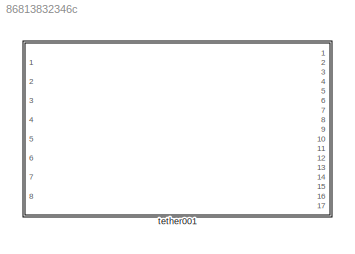
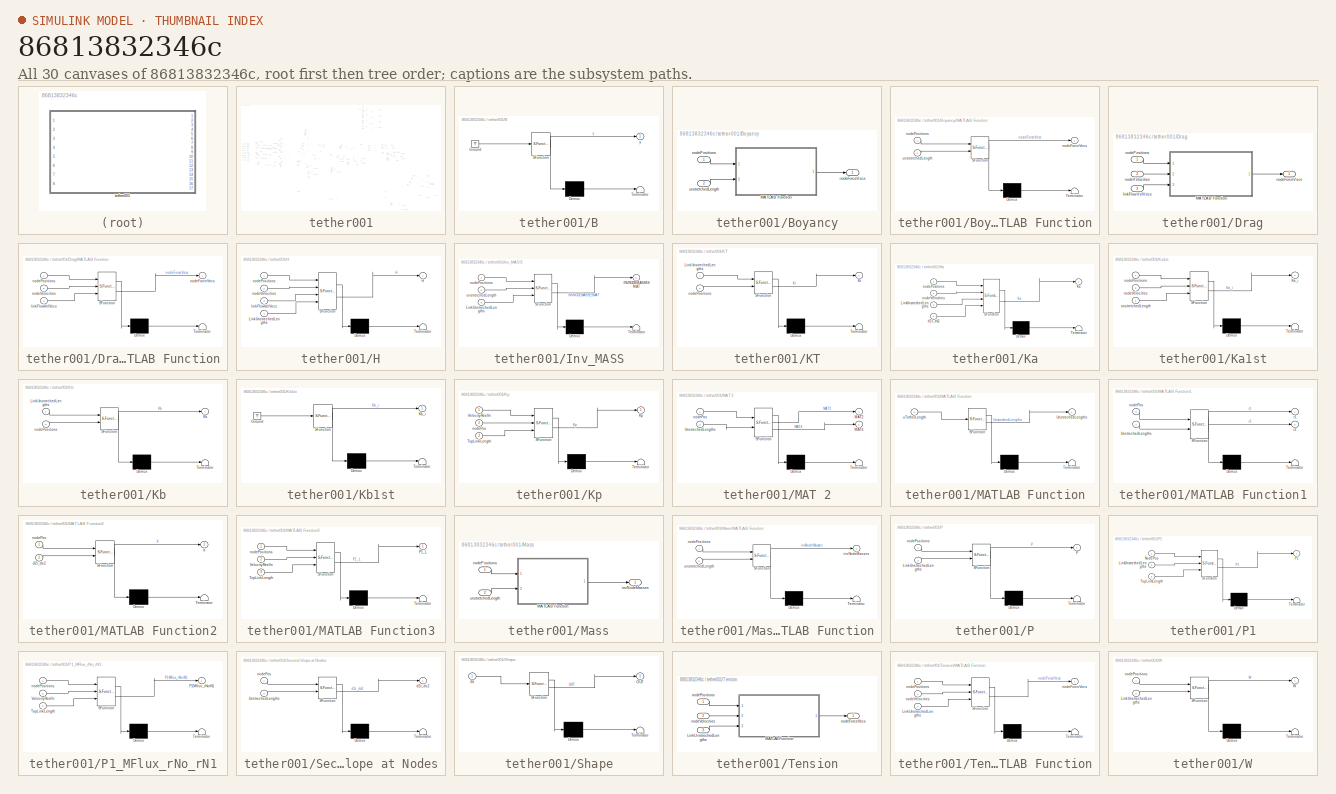
[diagram: thumbnail index - all 30 canvases of the model, root first then tree order]
MODEL slx_86813832346c
KIND library
CONFIG AbsTol = auto
CONFIG EnableMultiTasking = off
CONFIG FixedStep = auto
CONFIG MaxStep = auto
CONFIG MinStep = auto
CONFIG RelTol = 1e-3
CONFIG SampleTimeConstraint = Unconstrained
CONFIG Solver = VariableStepAuto
CONFIG SolverName = VariableStepAuto
CONFIG StartTime = 0.0
CONFIG StopTime = 10.0
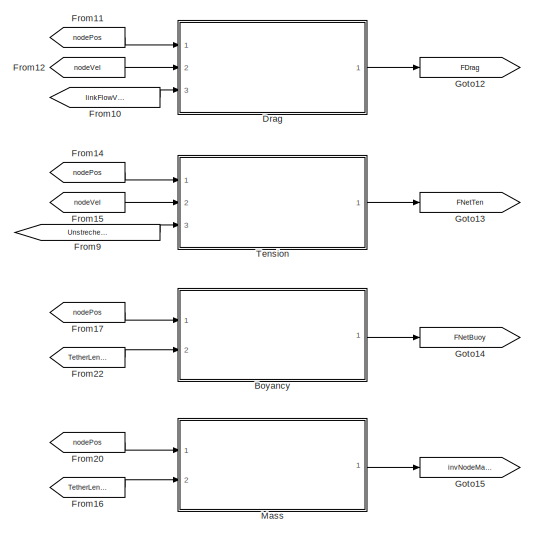
[diagram: tether001 - part 1/8, top center region]
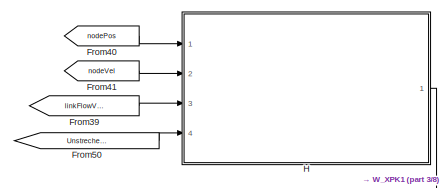
[diagram: tether001 - part 2/8, top center region]
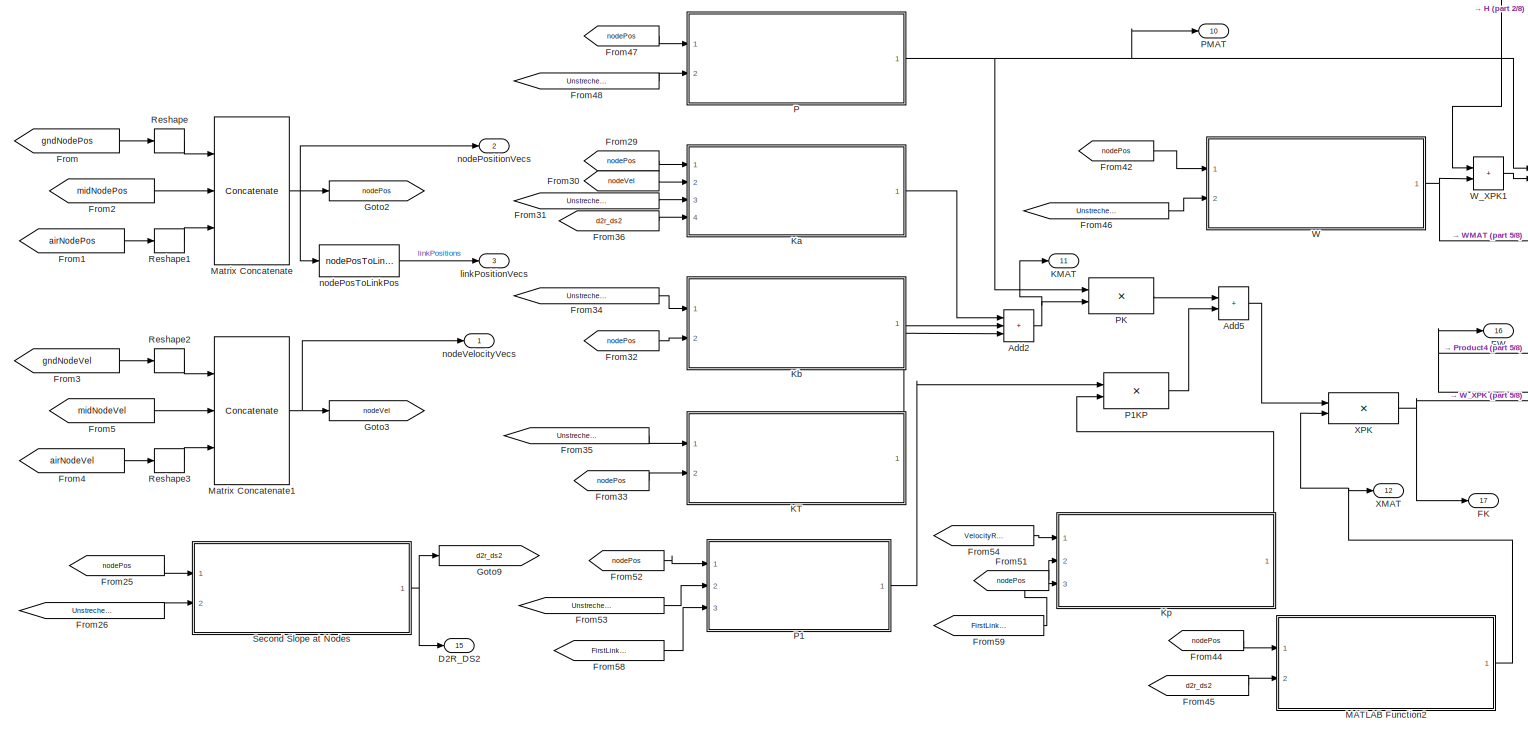
[diagram: tether001 - part 3/8, middle left region]
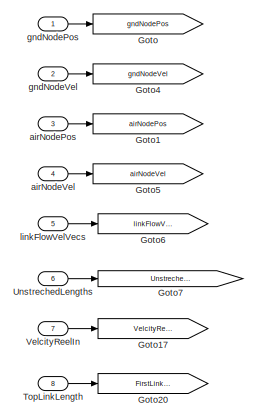
[diagram: tether001 - part 4/8, middle left region]
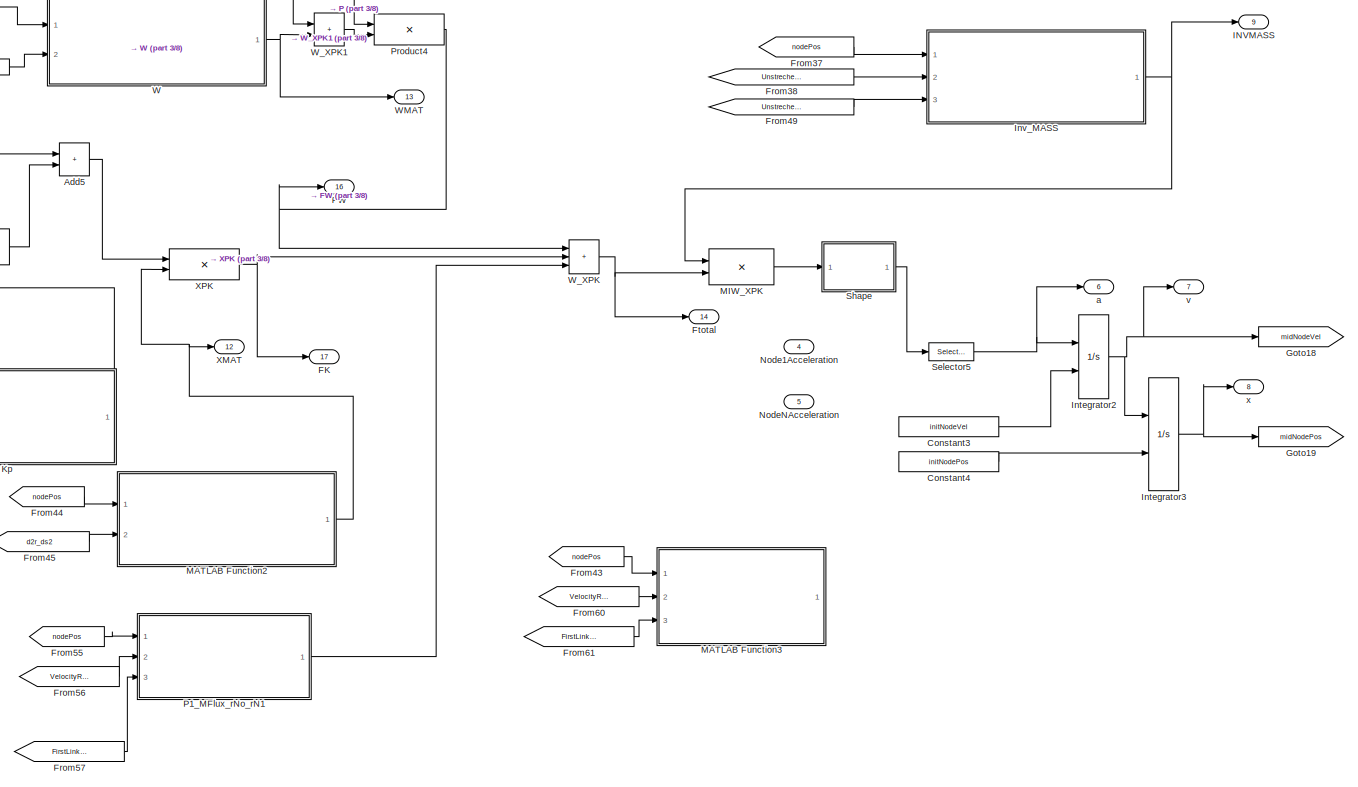
[diagram: tether001 - part 5/8, central region]
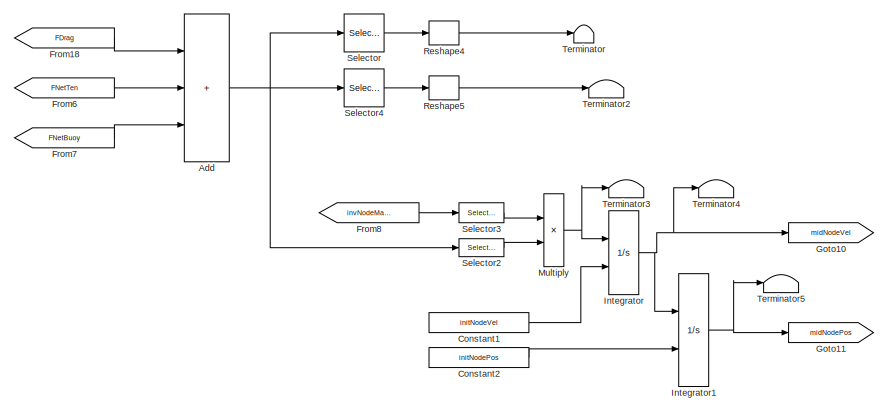
[diagram: tether001 - part 6/8, middle right region]
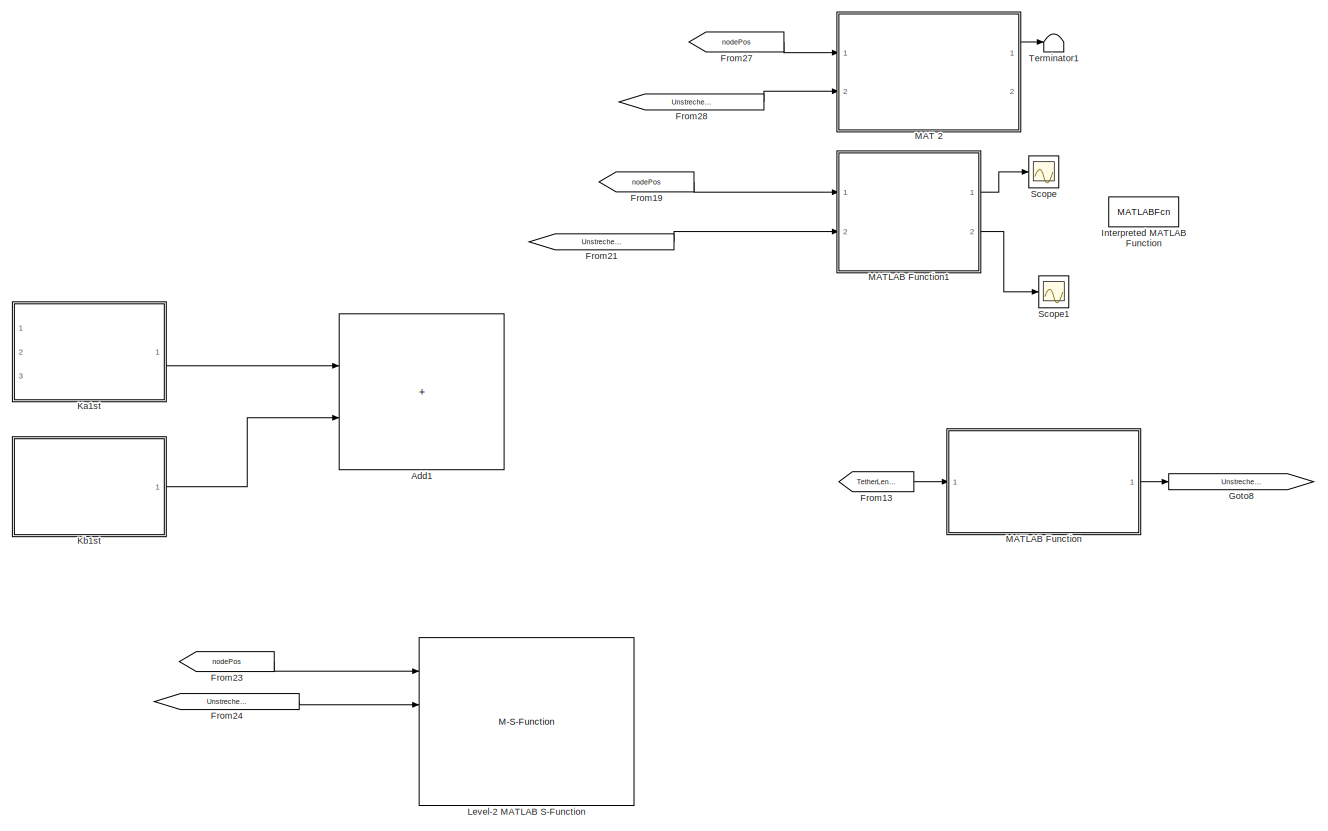
[diagram: tether001 - part 7/8, bottom right region]
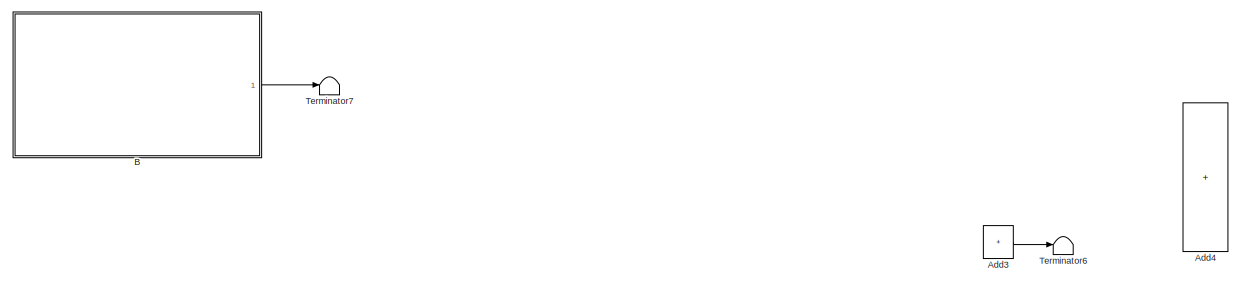
[diagram: tether001 - part 8/8, bottom center region]
BLOCK [SubSystem] tether001
  Ports = [8, 17]
  RequestExecContextInheritance = off
BLOCK [Sum] tether001/Add
  Commented = on
  IconShape = rectangular
  Inputs = 3
  Ports = [3, 1]
BLOCK [Sum] tether001/Add1
  Commented = on
  IconShape = rectangular
  Ports = [2, 1]
BLOCK [Sum] tether001/Add2
  IconShape = rectangular
  Inputs = +++
  Ports = [3, 1]
BLOCK [Sum] tether001/Add3
  Commented = on
  IconShape = rectangular
  Ports = [2, 1]
BLOCK [Sum] tether001/Add4
  Commented = on
  IconShape = rectangular
  Inputs = 2
  Ports = [2, 1]
BLOCK [Sum] tether001/Add5
  IconShape = rectangular
  Ports = [2, 1]
BLOCK [SubSystem] tether001/B
  Commented = on
  ErrorFcn = Stateflow.Translate.translate
  PermitHierarchicalResolution = ExplicitOnly
  Ports = [0, 1]
  RequestExecContextInheritance = off
  SFBlockType = MATLAB Function
  TreatAsAtomicUnit = on
BLOCK [Demux] tether001/B/ Demux 
  Outputs = 1
  Ports = [1, 1]
BLOCK [Ground] tether001/B/ Ground 
BLOCK [S-Function] tether001/B/ SFunction 
  EnableBusSupport = off
  FunctionName = sf_sfun
  PortCounts = [1 2]
  Ports = [1, 2]
  SFcnIsStateOwnerBlock = off
  SFunctionDeploymentMode = off
  Tag = Stateflow S-Function 17
BLOCK [Terminator] tether001/B/ Terminator 
BLOCK [Outport] tether001/B/y
BLOCK [SubSystem] tether001/Boyancy
  Commented = on
  Ports = [2, 1]
  RequestExecContextInheritance = off
BLOCK [SubSystem] tether001/Boyancy/MATLAB Function
  ErrorFcn = Stateflow.Translate.translate
  PermitHierarchicalResolution = ExplicitOnly
  Ports = [2, 1]
  RequestExecContextInheritance = off
  SFBlockType = MATLAB Function
  TreatAsAtomicUnit = on
BLOCK [Demux] tether001/Boyancy/MATLAB Function/ Demux 
  Outputs = 1
  Ports = [1, 1]
BLOCK [S-Function] tether001/Boyancy/MATLAB Function/ SFunction 
  EnableBusSupport = off
  FunctionName = sf_sfun
  PortCounts = [2 2]
  Ports = [2, 2]
  SFcnIsStateOwnerBlock = off
  SFunctionDeploymentMode = off
  Tag = Stateflow S-Function 3
BLOCK [Terminator] tether001/Boyancy/MATLAB Function/ Terminator 
BLOCK [Outport] tether001/Boyancy/MATLAB Function/nodeForceVecs
BLOCK [Inport] tether001/Boyancy/MATLAB Function/nodePositions
BLOCK [Inport] tether001/Boyancy/MATLAB Function/unstretchedLength
  Port = 2
BLOCK [Outport] tether001/Boyancy/nodeForceVecs
  VectorParamsAs1DForOutWhenUnconnected = off
BLOCK [Inport] tether001/Boyancy/nodePositions
BLOCK [Inport] tether001/Boyancy/unstretchedLength
  Port = 2
BLOCK [Constant] tether001/Constant1
  Commented = on
  Value = initNodeVel
BLOCK [Constant] tether001/Constant2
  Commented = on
  Value = initNodePos
BLOCK [Constant] tether001/Constant3
  Value = initNodeVel
BLOCK [Constant] tether001/Constant4
  Value = initNodePos
BLOCK [Outport] tether001/D2R_DS2
  Port = 15
  SampleTime = SampleTime
BLOCK [SubSystem] tether001/Drag
  Commented = on
  Ports = [3, 1]
  RequestExecContextInheritance = off
BLOCK [SubSystem] tether001/Drag/MATLAB Function
  ErrorFcn = Stateflow.Translate.translate
  PermitHierarchicalResolution = ExplicitOnly
  Ports = [3, 1]
  RequestExecContextInheritance = off
  SFBlockType = MATLAB Function
  TreatAsAtomicUnit = on
BLOCK [Demux] tether001/Drag/MATLAB Function/ Demux 
  Outputs = 1
  Ports = [1, 1]
BLOCK [S-Function] tether001/Drag/MATLAB Function/ SFunction 
  EnableBusSupport = off
  FunctionName = sf_sfun
  PortCounts = [3 2]
  Ports = [3, 2]
  SFcnIsStateOwnerBlock = off
  SFunctionDeploymentMode = off
  Tag = Stateflow S-Function 2
BLOCK [Terminator] tether001/Drag/MATLAB Function/ Terminator 
BLOCK [Inport] tether001/Drag/MATLAB Function/linkFlowVelVecs
  Port = 3
BLOCK [Outport] tether001/Drag/MATLAB Function/nodeForceVecs
BLOCK [Inport] tether001/Drag/MATLAB Function/nodePositions
BLOCK [Inport] tether001/Drag/MATLAB Function/nodeVelocities
  Port = 2
BLOCK [Inport] tether001/Drag/linkFlowVelVecs
  Port = 3
BLOCK [Outport] tether001/Drag/nodeForceVecs
BLOCK [Inport] tether001/Drag/nodePositions
BLOCK [Inport] tether001/Drag/nodeVelocities
  Port = 2
BLOCK [Outport] tether001/FK
  Port = 17
  SampleTime = SampleTime
BLOCK [Outport] tether001/FW
  Port = 16
  SampleTime = SampleTime
BLOCK [From] tether001/From
  GotoTag = gndNodePos
BLOCK [From] tether001/From1
  GotoTag = airNodePos
BLOCK [From] tether001/From10
  Commented = on
  GotoTag = linkFlowVelVecs
BLOCK [From] tether001/From11
  Commented = on
  GotoTag = nodePos
BLOCK [From] tether001/From12
  Commented = on
  GotoTag = nodeVel
BLOCK [From] tether001/From13
  Commented = on
  GotoTag = TetherLength
BLOCK [From] tether001/From14
  Commented = on
  GotoTag = nodePos
BLOCK [From] tether001/From15
  Commented = on
  GotoTag = nodeVel
BLOCK [From] tether001/From16
  Commented = on
  GotoTag = TetherLength
BLOCK [From] tether001/From17
  Commented = on
  GotoTag = nodePos
BLOCK [From] tether001/From18
  Commented = on
  GotoTag = FDrag
BLOCK [From] tether001/From19
  Commented = on
  GotoTag = nodePos
BLOCK [From] tether001/From2
  GotoTag = midNodePos
BLOCK [From] tether001/From20
  Commented = on
  GotoTag = nodePos
BLOCK [From] tether001/From21
  Commented = on
  GotoTag = UnstrechedLengths
BLOCK [From] tether001/From22
  Commented = on
  GotoTag = TetherLength
BLOCK [From] tether001/From23
  Commented = on
  GotoTag = nodePos
BLOCK [From] tether001/From24
  Commented = on
  GotoTag = UnstrechedLengths
BLOCK [From] tether001/From25
  GotoTag = nodePos
BLOCK [From] tether001/From26
  GotoTag = UnstrechedLengths
BLOCK [From] tether001/From27
  Commented = on
  GotoTag = nodePos
BLOCK [From] tether001/From28
  Commented = on
  GotoTag = UnstrechedLengths
BLOCK [From] tether001/From29
  GotoTag = nodePos
BLOCK [From] tether001/From3
  GotoTag = gndNodeVel
BLOCK [From] tether001/From30
  GotoTag = nodeVel
BLOCK [From] tether001/From31
  GotoTag = UnstrechedLengths
BLOCK [From] tether001/From32
  GotoTag = nodePos
BLOCK [From] tether001/From33
  GotoTag = nodePos
BLOCK [From] tether001/From34
  GotoTag = UnstrechedLengths
BLOCK [From] tether001/From35
  GotoTag = UnstrechedLengths
BLOCK [From] tether001/From36
  GotoTag = d2r_ds2
BLOCK [From] tether001/From37
  GotoTag = nodePos
BLOCK [From] tether001/From38
  GotoTag = UnstrechedLengths
BLOCK [From] tether001/From39
  GotoTag = linkFlowVelVecs
BLOCK [From] tether001/From4
  GotoTag = airNodeVel
BLOCK [From] tether001/From40
  GotoTag = nodePos
BLOCK [From] tether001/From41
  GotoTag = nodeVel
BLOCK [From] tether001/From42
  GotoTag = nodePos
BLOCK [From] tether001/From43
  Commented = on
  GotoTag = nodePos
BLOCK [From] tether001/From44
  GotoTag = nodePos
BLOCK [From] tether001/From45
  GotoTag = d2r_ds2
BLOCK [From] tether001/From46
  GotoTag = UnstrechedLengths
BLOCK [From] tether001/From47
  GotoTag = nodePos
BLOCK [From] tether001/From48
  GotoTag = UnstrechedLengths
BLOCK [From] tether001/From49
  GotoTag = UnstrechedLengths
BLOCK [From] tether001/From5
  GotoTag = midNodeVel
BLOCK [From] tether001/From50
  GotoTag = UnstrechedLengths
BLOCK [From] tether001/From51
  GotoTag = nodePos
BLOCK [From] tether001/From52
  GotoTag = nodePos
BLOCK [From] tether001/From53
  GotoTag = UnstrechedLengths
BLOCK [From] tether001/From54
  GotoTag = VelocityReelIn
BLOCK [From] tether001/From55
  GotoTag = nodePos
BLOCK [From] tether001/From56
  GotoTag = VelocityReelIn
BLOCK [From] tether001/From57
  GotoTag = FirstLinkLength
BLOCK [From] tether001/From58
  GotoTag = FirstLinkLength
BLOCK [From] tether001/From59
  GotoTag = FirstLinkLength
BLOCK [From] tether001/From6
  Commented = on
  GotoTag = FNetTen
BLOCK [From] tether001/From60
  Commented = on
  GotoTag = VelocityReelIn
BLOCK [From] tether001/From61
  Commented = on
  GotoTag = FirstLinkLength
BLOCK [From] tether001/From7
  Commented = on
  GotoTag = FNetBuoy
BLOCK [From] tether001/From8
  Commented = on
  GotoTag = invNodeMasses
BLOCK [From] tether001/From9
  Commented = on
  GotoTag = UnstrechedLengths
BLOCK [Outport] tether001/Ftotal
  Port = 14
  SampleTime = SampleTime
BLOCK [Goto] tether001/Goto
  GotoTag = gndNodePos
BLOCK [Goto] tether001/Goto1
  GotoTag = airNodePos
BLOCK [Goto] tether001/Goto10
  Commented = on
  GotoTag = midNodeVel
BLOCK [Goto] tether001/Goto11
  Commented = on
  GotoTag = midNodePos
BLOCK [Goto] tether001/Goto12
  Commented = on
  GotoTag = FDrag
BLOCK [Goto] tether001/Goto13
  Commented = on
  GotoTag = FNetTen
BLOCK [Goto] tether001/Goto14
  Commented = on
  GotoTag = FNetBuoy
BLOCK [Goto] tether001/Goto15
  Commented = on
  GotoTag = invNodeMasses
BLOCK [Goto] tether001/Goto17
  GotoTag = VelcityReelIn
BLOCK [Goto] tether001/Goto18
  GotoTag = midNodeVel
BLOCK [Goto] tether001/Goto19
  GotoTag = midNodePos
BLOCK [Goto] tether001/Goto2
  GotoTag = nodePos
BLOCK [Goto] tether001/Goto20
  GotoTag = FirstLinkLength
BLOCK [Goto] tether001/Goto3
  GotoTag = nodeVel
BLOCK [Goto] tether001/Goto4
  GotoTag = gndNodeVel
BLOCK [Goto] tether001/Goto5
  GotoTag = airNodeVel
BLOCK [Goto] tether001/Goto6
  GotoTag = linkFlowVelVecs
BLOCK [Goto] tether001/Goto7
  GotoTag = UnstrechedLengths
BLOCK [Goto] tether001/Goto8
  Commented = on
  GotoTag = UnstrechedLengths
BLOCK [Goto] tether001/Goto9
  GotoTag = d2r_ds2
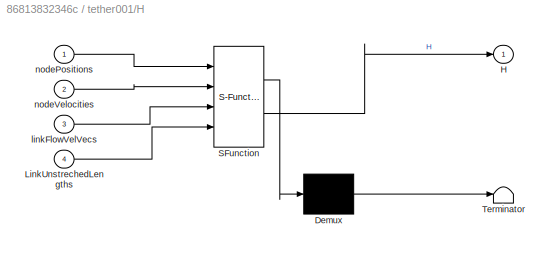
BLOCK [SubSystem] tether001/H
  ErrorFcn = Stateflow.Translate.translate
  PermitHierarchicalResolution = ExplicitOnly
  Ports = [4, 1]
  RequestExecContextInheritance = off
  SFBlockType = MATLAB Function
  TreatAsAtomicUnit = on
BLOCK [Demux] tether001/H/ Demux 
  Outputs = 1
  Ports = [1, 1]
BLOCK [S-Function] tether001/H/ SFunction 
  EnableBusSupport = off
  FunctionName = sf_sfun
  PortCounts = [4 2]
  Ports = [4, 2]
  SFcnIsStateOwnerBlock = off
  SFunctionDeploymentMode = off
  Tag = Stateflow S-Function 15
BLOCK [Terminator] tether001/H/ Terminator 
BLOCK [Outport] tether001/H/H
BLOCK [Inport] tether001/H/LinkUnstrechedLengths
  Port = 4
BLOCK [Inport] tether001/H/linkFlowVelVecs
  Port = 3
BLOCK [Inport] tether001/H/nodePositions
BLOCK [Inport] tether001/H/nodeVelocities
  Port = 2
BLOCK [Outport] tether001/INVMASS
  Port = 9
  SampleTime = SampleTime
BLOCK [Integrator] tether001/Integrator
  Commented = on
  InitialConditionSource = external
  Ports = [2, 1]
BLOCK [Integrator] tether001/Integrator1
  Commented = on
  InitialConditionSource = external
  Ports = [2, 1]
BLOCK [Integrator] tether001/Integrator2
  ContinuousStateAttributes = 'position'
  InitialConditionSource = external
  Ports = [2, 1]
BLOCK [Integrator] tether001/Integrator3
  ContinuousStateAttributes = 'velocity'
  InitialConditionSource = external
  Ports = [2, 1]
BLOCK [MATLABFcn] tether001/Interpreted MATLAB Function
  Commented = on
  MATLABFcn = fsolve(f,x0)
  Output1D = off
  Ports = [1, 1]
BLOCK [SubSystem] tether001/Inv_MASS
  ErrorFcn = Stateflow.Translate.translate
  PermitHierarchicalResolution = ExplicitOnly
  Ports = [3, 1]
  RequestExecContextInheritance = off
  SFBlockType = MATLAB Function
  TreatAsAtomicUnit = on
BLOCK [Demux] tether001/Inv_MASS/ Demux 
  Outputs = 1
  Ports = [1, 1]
BLOCK [S-Function] tether001/Inv_MASS/ SFunction 
  EnableBusSupport = off
  FunctionName = sf_sfun
  PortCounts = [3 2]
  Ports = [3, 2]
  SFcnIsStateOwnerBlock = off
  SFunctionDeploymentMode = off
  Tag = Stateflow S-Function 14
BLOCK [Terminator] tether001/Inv_MASS/ Terminator 
BLOCK [Outport] tether001/Inv_MASS/INVNODEMASSESMAT
BLOCK [Inport] tether001/Inv_MASS/LinkUnstrechedLengths
  Port = 3
BLOCK [Inport] tether001/Inv_MASS/nodePositions
BLOCK [Inport] tether001/Inv_MASS/unstretchedLength
  Port = 2
BLOCK [Outport] tether001/KMAT
  Port = 11
  SampleTime = SampleTime
BLOCK [SubSystem] tether001/KT
  ErrorFcn = Stateflow.Translate.translate
  PermitHierarchicalResolution = ExplicitOnly
  Ports = [2, 1]
  RequestExecContextInheritance = off
  SFBlockType = MATLAB Function
  TreatAsAtomicUnit = on
BLOCK [Demux] tether001/KT/ Demux 
  Outputs = 1
  Ports = [1, 1]
BLOCK [S-Function] tether001/KT/ SFunction 
  EnableBusSupport = off
  FunctionName = sf_sfun
  PortCounts = [2 2]
  Ports = [2, 2]
  SFcnIsStateOwnerBlock = off
  SFunctionDeploymentMode = off
  Tag = Stateflow S-Function 13
BLOCK [Terminator] tether001/KT/ Terminator 
BLOCK [Outport] tether001/KT/Kt
BLOCK [Inport] tether001/KT/LinkUnstrechedLengths
BLOCK [Inport] tether001/KT/nodePositions
  Port = 2
BLOCK [SubSystem] tether001/Ka
  ErrorFcn = Stateflow.Translate.translate
  PermitHierarchicalResolution = ExplicitOnly
  Ports = [4, 1]
  RequestExecContextInheritance = off
  SFBlockType = MATLAB Function
  TreatAsAtomicUnit = on
BLOCK [Demux] tether001/Ka/ Demux 
  Outputs = 1
  Ports = [1, 1]
BLOCK [S-Function] tether001/Ka/ SFunction 
  EnableBusSupport = off
  FunctionName = sf_sfun
  PortCounts = [4 2]
  Ports = [4, 2]
  SFcnIsStateOwnerBlock = off
  SFunctionDeploymentMode = off
  Tag = Stateflow S-Function 11
BLOCK [Terminator] tether001/Ka/ Terminator 
BLOCK [Outport] tether001/Ka/Ka
BLOCK [Inport] tether001/Ka/LinkUnstrechedLengths
  Port = 3
BLOCK [Inport] tether001/Ka/d2r_ds2
  Port = 4
BLOCK [Inport] tether001/Ka/nodePositions
BLOCK [Inport] tether001/Ka/nodeVelocities
  Port = 2
BLOCK [SubSystem] tether001/Ka1st
  Commented = on
  ErrorFcn = Stateflow.Translate.translate
  PermitHierarchicalResolution = ExplicitOnly
  Ports = [3, 1]
  RequestExecContextInheritance = off
  SFBlockType = MATLAB Function
  TreatAsAtomicUnit = on
BLOCK [Demux] tether001/Ka1st/ Demux 
  Outputs = 1
  Ports = [1, 1]
BLOCK [S-Function] tether001/Ka1st/ SFunction 
  EnableBusSupport = off
  FunctionName = sf_sfun
  PortCounts = [3 2]
  Ports = [3, 2]
  SFcnIsStateOwnerBlock = off
  SFunctionDeploymentMode = off
  Tag = Stateflow S-Function 6
BLOCK [Terminator] tether001/Ka1st/ Terminator 
BLOCK [Outport] tether001/Ka1st/Ka_i
BLOCK [Inport] tether001/Ka1st/nodePositions
BLOCK [Inport] tether001/Ka1st/nodeVelocities
  Port = 2
BLOCK [Inport] tether001/Ka1st/unstretchedLength
  Port = 3
BLOCK [SubSystem] tether001/Kb
  ErrorFcn = Stateflow.Translate.translate
  PermitHierarchicalResolution = ExplicitOnly
  Ports = [2, 1]
  RequestExecContextInheritance = off
  SFBlockType = MATLAB Function
  TreatAsAtomicUnit = on
BLOCK [Demux] tether001/Kb/ Demux 
  Outputs = 1
  Ports = [1, 1]
BLOCK [S-Function] tether001/Kb/ SFunction 
  EnableBusSupport = off
  FunctionName = sf_sfun
  PortCounts = [2 2]
  Ports = [2, 2]
  SFcnIsStateOwnerBlock = off
  SFunctionDeploymentMode = off
  Tag = Stateflow S-Function 12
BLOCK [Terminator] tether001/Kb/ Terminator 
BLOCK [Outport] tether001/Kb/Kb
BLOCK [Inport] tether001/Kb/LinkUnstrechedLengths
BLOCK [Inport] tether001/Kb/nodePositions
  Port = 2
BLOCK [SubSystem] tether001/Kb1st
  Commented = on
  ErrorFcn = Stateflow.Translate.translate
  PermitHierarchicalResolution = ExplicitOnly
  Ports = [0, 1]
  RequestExecContextInheritance = off
  SFBlockType = MATLAB Function
  TreatAsAtomicUnit = on
BLOCK [Demux] tether001/Kb1st/ Demux 
  Outputs = 1
  Ports = [1, 1]
BLOCK [Ground] tether001/Kb1st/ Ground 
BLOCK [S-Function] tether001/Kb1st/ SFunction 
  EnableBusSupport = off
  FunctionName = sf_sfun
  PortCounts = [1 2]
  Ports = [1, 2]
  SFcnIsStateOwnerBlock = off
  SFunctionDeploymentMode = off
  Tag = Stateflow S-Function 5
BLOCK [Terminator] tether001/Kb1st/ Terminator 
BLOCK [Outport] tether001/Kb1st/Kb_i
BLOCK [SubSystem] tether001/Kp
  ErrorFcn = Stateflow.Translate.translate
  PermitHierarchicalResolution = ExplicitOnly
  Ports = [3, 1]
  RequestExecContextInheritance = off
  SFBlockType = MATLAB Function
  TreatAsAtomicUnit = on
BLOCK [Demux] tether001/Kp/ Demux 
  Outputs = 1
  Ports = [1, 1]
BLOCK [S-Function] tether001/Kp/ SFunction 
  EnableBusSupport = off
  FunctionName = sf_sfun
  PortCounts = [3 2]
  Ports = [3, 2]
  SFcnIsStateOwnerBlock = off
  SFunctionDeploymentMode = off
  Tag = Stateflow S-Function 21
BLOCK [Terminator] tether001/Kp/ Terminator 
BLOCK [Outport] tether001/Kp/Kp
BLOCK [Inport] tether001/Kp/TopLinkLength
  Port = 3
BLOCK [Inport] tether001/Kp/VelocityReelIn
BLOCK [Inport] tether001/Kp/nodePos
  Port = 2
BLOCK [M-S-Function] tether001/Level-2 MATLAB S-Function
  Commented = on
  FunctionName = SFunction
  Ports = [4, 1]
BLOCK [SubSystem] tether001/MAT 2
  Commented = on
  ErrorFcn = Stateflow.Translate.translate
  PermitHierarchicalResolution = ExplicitOnly
  Ports = [2, 2]
  RequestExecContextInheritance = off
  SFBlockType = MATLAB Function
  TreatAsAtomicUnit = on
BLOCK [Demux] tether001/MAT 2/ Demux 
  Outputs = 1
  Ports = [1, 1]
BLOCK [S-Function] tether001/MAT 2/ SFunction 
  EnableBusSupport = off
  FunctionName = sf_sfun
  PortCounts = [2 3]
  Ports = [2, 3]
  SFcnIsStateOwnerBlock = off
  SFunctionDeploymentMode = off
  Tag = Stateflow S-Function 10
BLOCK [Terminator] tether001/MAT 2/ Terminator 
BLOCK [Outport] tether001/MAT 2/MAT2
BLOCK [Outport] tether001/MAT 2/MAT4
  Port = 2
BLOCK [Inport] tether001/MAT 2/UnstrechedLengths
  Port = 2
BLOCK [Inport] tether001/MAT 2/nodePos
BLOCK [SubSystem] tether001/MATLAB Function
  Commented = on
  ErrorFcn = Stateflow.Translate.translate
  PermitHierarchicalResolution = ExplicitOnly
  Ports = [1, 1]
  RequestExecContextInheritance = off
  SFBlockType = MATLAB Function
  TreatAsAtomicUnit = on
BLOCK [Demux] tether001/MATLAB Function/ Demux 
  Outputs = 1
  Ports = [1, 1]
BLOCK [S-Function] tether001/MATLAB Function/ SFunction 
  EnableBusSupport = off
  FunctionName = sf_sfun
  PortCounts = [1 2]
  Ports = [1, 2]
  SFcnIsStateOwnerBlock = off
  SFunctionDeploymentMode = off
  Tag = Stateflow S-Function 7
BLOCK [Terminator] tether001/MATLAB Function/ Terminator 
BLOCK [Outport] tether001/MATLAB Function/UnstrechedLengths
BLOCK [Inport] tether001/MATLAB Function/uTetherLength
BLOCK [SubSystem] tether001/MATLAB Function1
  Commented = on
  ErrorFcn = Stateflow.Translate.translate
  PermitHierarchicalResolution = ExplicitOnly
  Ports = [2, 2]
  RequestExecContextInheritance = off
  SFBlockType = MATLAB Function
  TreatAsAtomicUnit = on
BLOCK [Demux] tether001/MATLAB Function1/ Demux 
  Outputs = 1
  Ports = [1, 1]
BLOCK [S-Function] tether001/MATLAB Function1/ SFunction 
  EnableBusSupport = off
  FunctionName = sf_sfun
  PortCounts = [2 3]
  Ports = [2, 3]
  SFcnIsStateOwnerBlock = off
  SFunctionDeploymentMode = off
  Tag = Stateflow S-Function 8
BLOCK [Terminator] tether001/MATLAB Function1/ Terminator 
BLOCK [Inport] tether001/MATLAB Function1/UnstrechedLengths
  Port = 2
BLOCK [Inport] tether001/MATLAB Function1/nodePos
BLOCK [Outport] tether001/MATLAB Function1/r1
BLOCK [Outport] tether001/MATLAB Function1/r2
  Port = 2
BLOCK [SubSystem] tether001/MATLAB Function2
  ErrorFcn = Stateflow.Translate.translate
  PermitHierarchicalResolution = ExplicitOnly
  Ports = [2, 1]
  RequestExecContextInheritance = off
  SFBlockType = MATLAB Function
  TreatAsAtomicUnit = on
BLOCK [Demux] tether001/MATLAB Function2/ Demux 
  Outputs = 1
  Ports = [1, 1]
BLOCK [S-Function] tether001/MATLAB Function2/ SFunction 
  EnableBusSupport = off
  FunctionName = sf_sfun
  PortCounts = [2 2]
  Ports = [2, 2]
  SFcnIsStateOwnerBlock = off
  SFunctionDeploymentMode = off
  Tag = Stateflow S-Function 18
BLOCK [Terminator] tether001/MATLAB Function2/ Terminator 
BLOCK [Outport] tether001/MATLAB Function2/X
BLOCK [Inport] tether001/MATLAB Function2/d2r_ds2
  Port = 2
BLOCK [Inport] tether001/MATLAB Function2/nodePos
BLOCK [SubSystem] tether001/MATLAB Function3
  Commented = on
  ErrorFcn = Stateflow.Translate.translate
  PermitHierarchicalResolution = ExplicitOnly
  Ports = [3, 1]
  RequestExecContextInheritance = off
  SFBlockType = MATLAB Function
  TreatAsAtomicUnit = on
BLOCK [Demux] tether001/MATLAB Function3/ Demux 
  Outputs = 1
  Ports = [1, 1]
BLOCK [S-Function] tether001/MATLAB Function3/ SFunction 
  EnableBusSupport = off
  FunctionName = sf_sfun
  PortCounts = [3 2]
  Ports = [3, 2]
  SFcnIsStateOwnerBlock = off
  SFunctionDeploymentMode = off
  Tag = Stateflow S-Function 24
BLOCK [Terminator] tether001/MATLAB Function3/ Terminator 
BLOCK [Outport] tether001/MATLAB Function3/P1_L
BLOCK [Inport] tether001/MATLAB Function3/TopLinkLength
  Port = 3
BLOCK [Inport] tether001/MATLAB Function3/VelocityReelIn
  Port = 2
BLOCK [Inport] tether001/MATLAB Function3/nodePositions
BLOCK [Product] tether001/MIW_XPK
  Multiplication = Matrix(*)
  Ports = [2, 1]
BLOCK [SubSystem] tether001/Mass
  Commented = on
  Ports = [2, 1]
  RequestExecContextInheritance = off
BLOCK [SubSystem] tether001/Mass/MATLAB Function
  ErrorFcn = Stateflow.Translate.translate
  PermitHierarchicalResolution = ExplicitOnly
  Ports = [2, 1]
  RequestExecContextInheritance = off
  SFBlockType = MATLAB Function
  TreatAsAtomicUnit = on
BLOCK [Demux] tether001/Mass/MATLAB Function/ Demux 
  Outputs = 1
  Ports = [1, 1]
BLOCK [S-Function] tether001/Mass/MATLAB Function/ SFunction 
  EnableBusSupport = off
  FunctionName = sf_sfun
  PortCounts = [2 2]
  Ports = [2, 2]
  SFcnIsStateOwnerBlock = off
  SFunctionDeploymentMode = off
  Tag = Stateflow S-Function 4
BLOCK [Terminator] tether001/Mass/MATLAB Function/ Terminator 
BLOCK [Outport] tether001/Mass/MATLAB Function/invNodeMasses
BLOCK [Inport] tether001/Mass/MATLAB Function/nodePositions
BLOCK [Inport] tether001/Mass/MATLAB Function/unstretchedLength
  Port = 2
BLOCK [Outport] tether001/Mass/invNodeMasses
  VectorParamsAs1DForOutWhenUnconnected = off
BLOCK [Inport] tether001/Mass/nodePositions
BLOCK [Inport] tether001/Mass/unstretchedLength
  Port = 2
BLOCK [Concatenate] tether001/Matrix Concatenate
  ConcatenateDimension = 2
  Mode = Multidimensional array
  NumInputs = 3
  Ports = [3, 1]
BLOCK [Concatenate] tether001/Matrix Concatenate1
  ConcatenateDimension = 2
  Mode = Multidimensional array
  NumInputs = 3
  Ports = [3, 1]
BLOCK [Product] tether001/Multiply
  Commented = on
  Ports = [2, 1]
BLOCK [Outport] tether001/Node1Acceleration
  Port = 4
  SampleTime = SampleTime
BLOCK [Outport] tether001/NodeNAcceleration
  Port = 5
  SampleTime = SampleTime
BLOCK [SubSystem] tether001/P
  ErrorFcn = Stateflow.Translate.translate
  PermitHierarchicalResolution = ExplicitOnly
  Ports = [2, 1]
  RequestExecContextInheritance = off
  SFBlockType = MATLAB Function
  TreatAsAtomicUnit = on
BLOCK [Demux] tether001/P/ Demux 
  Outputs = 1
  Ports = [1, 1]
BLOCK [S-Function] tether001/P/ SFunction 
  EnableBusSupport = off
  FunctionName = sf_sfun
  PortCounts = [2 2]
  Ports = [2, 2]
  SFcnIsStateOwnerBlock = off
  SFunctionDeploymentMode = off
  Tag = Stateflow S-Function 19
BLOCK [Terminator] tether001/P/ Terminator 
BLOCK [Inport] tether001/P/LinkUnstrechedLengths
  Port = 2
BLOCK [Outport] tether001/P/P
BLOCK [Inport] tether001/P/nodePositions
BLOCK [SubSystem] tether001/P1
  ErrorFcn = Stateflow.Translate.translate
  PermitHierarchicalResolution = ExplicitOnly
  Ports = [3, 1]
  RequestExecContextInheritance = off
  SFBlockType = MATLAB Function
  TreatAsAtomicUnit = on
BLOCK [Demux] tether001/P1/ Demux 
  Outputs = 1
  Ports = [1, 1]
BLOCK [S-Function] tether001/P1/ SFunction 
  EnableBusSupport = off
  FunctionName = sf_sfun
  PortCounts = [3 2]
  Ports = [3, 2]
  SFcnIsStateOwnerBlock = off
  SFunctionDeploymentMode = off
  Tag = Stateflow S-Function 22
BLOCK [Terminator] tether001/P1/ Terminator 
BLOCK [Inport] tether001/P1/LinkUnstrechedLengths
  Port = 2
BLOCK [Inport] tether001/P1/NodePos
BLOCK [Outport] tether001/P1/P1
BLOCK [Inport] tether001/P1/TopLinkLength
  Port = 3
BLOCK [Product] tether001/P1KP
  Multiplication = Matrix(*)
  Ports = [2, 1]
BLOCK [SubSystem] tether001/P1_MFlux_rNo_rN1
  ErrorFcn = Stateflow.Translate.translate
  PermitHierarchicalResolution = ExplicitOnly
  Ports = [3, 1]
  RequestExecContextInheritance = off
  SFBlockType = MATLAB Function
  TreatAsAtomicUnit = on
BLOCK [Demux] tether001/P1_MFlux_rNo_rN1/ Demux 
  Outputs = 1
  Ports = [1, 1]
BLOCK [S-Function] tether001/P1_MFlux_rNo_rN1/ SFunction 
  EnableBusSupport = off
  FunctionName = sf_sfun
  PortCounts = [3 2]
  Ports = [3, 2]
  SFcnIsStateOwnerBlock = off
  SFunctionDeploymentMode = off
  Tag = Stateflow S-Function 23
BLOCK [Terminator] tether001/P1_MFlux_rNo_rN1/ Terminator 
BLOCK [Outport] tether001/P1_MFlux_rNo_rN1/P1Mflux_rNorN1
BLOCK [Inport] tether001/P1_MFlux_rNo_rN1/TopLinkLength
  Port = 3
BLOCK [Inport] tether001/P1_MFlux_rNo_rN1/VelocityReelIn
  Port = 2
BLOCK [Inport] tether001/P1_MFlux_rNo_rN1/nodePositions
BLOCK [Product] tether001/PK
  Multiplication = Matrix(*)
  Ports = [2, 1]
BLOCK [Outport] tether001/PMAT
  Port = 10
  SampleTime = SampleTime
BLOCK [Product] tether001/Product4
  Multiplication = Matrix(*)
  Ports = [2, 1]
BLOCK [Reshape] tether001/Reshape
  OutputDimensionality = Column vector (2-D)
  Ports = [1, 1]
BLOCK [Reshape] tether001/Reshape1
  OutputDimensionality = Column vector (2-D)
  Ports = [1, 1]
BLOCK [Reshape] tether001/Reshape2
  OutputDimensionality = Column vector (2-D)
  Ports = [1, 1]
BLOCK [Reshape] tether001/Reshape3
  OutputDimensionality = Column vector (2-D)
  Ports = [1, 1]
BLOCK [Reshape] tether001/Reshape4
  Commented = on
  OutputDimensionality = Column vector (2-D)
  Ports = [1, 1]
BLOCK [Reshape] tether001/Reshape5
  Commented = on
  OutputDimensionality = Column vector (2-D)
  Ports = [1, 1]
BLOCK [Scope] tether001/Scope
  Commented = on
  Floating = off
  NumInputPorts = 1
  Ports = [1]
  ScopeSpecificationString = Simulink.scopes.TimeScopeBlockCfg('CurrentConfiguration', extmgr.ConfigurationSet(extmgr.Configuration('Core','General UI',true),extmgr.Configuration('Core','Source UI',true),extmgr.Configuration('Sources','WiredSimulink',true),extmgr.Configuration('Visuals','Time Domain',true),extmgr.Configuration('Tools','Plot Navigation',true),extmgr.Configuration('Tools','Measurements',true)),'Version','2020a'...<+1ch>
BLOCK [Scope] tether001/Scope1
  Commented = on
  Floating = off
  NumInputPorts = 1
  Ports = [1]
  ScopeSpecificationString = Simulink.scopes.TimeScopeBlockCfg('CurrentConfiguration', extmgr.ConfigurationSet(extmgr.Configuration('Core','General UI',true),extmgr.Configuration('Core','Source UI',true),extmgr.Configuration('Sources','WiredSimulink',true,'DataLoggingVariableName','ScopeData1'),extmgr.Configuration('Visuals','Time Domain',true),extmgr.Configuration('Tools','Plot Navigation',true),extmgr.Configuration('Tools',...<+40ch>
BLOCK [SubSystem] tether001/Second Slope at Nodes
  ErrorFcn = Stateflow.Translate.translate
  PermitHierarchicalResolution = ExplicitOnly
  Ports = [2, 1]
  RequestExecContextInheritance = off
  SFBlockType = MATLAB Function
  TreatAsAtomicUnit = on
BLOCK [Demux] tether001/Second Slope at Nodes/ Demux 
  Outputs = 1
  Ports = [1, 1]
BLOCK [S-Function] tether001/Second Slope at Nodes/ SFunction 
  EnableBusSupport = off
  FunctionName = sf_sfun
  PortCounts = [2 2]
  Ports = [2, 2]
  SFcnIsStateOwnerBlock = off
  SFunctionDeploymentMode = off
  Tag = Stateflow S-Function 9
BLOCK [Terminator] tether001/Second Slope at Nodes/ Terminator 
BLOCK [Inport] tether001/Second Slope at Nodes/UnstrechedLengths
  Port = 2
BLOCK [Outport] tether001/Second Slope at Nodes/d2r_ds2
BLOCK [Inport] tether001/Second Slope at Nodes/nodePos
BLOCK [Selector] tether001/Selector
  Commented = on
  IndexOptions = Select all,Index vector (dialog)
  Indices = [1 3],1
  InputPortWidth = 3
  NumberOfDimensions = 2
  OutputSizes = 1,1
  Ports = [1, 1]
BLOCK [Selector] tether001/Selector2
  Commented = on
  IndexOptions = Select all,Index vector (dialog)
  Indices = [1 3],2:numNodes-1
  InputPortWidth = 3
  NumberOfDimensions = 2
  OutputSizes = 1,1
  Ports = [1, 1]
BLOCK [Selector] tether001/Selector3
  Commented = on
  IndexOptions = Select all,Index vector (dialog)
  Indices = [1 3],2:numNodes-1
  InputPortWidth = 3
  NumberOfDimensions = 2
  OutputSizes = 1,1
  Ports = [1, 1]
BLOCK [Selector] tether001/Selector4
  Commented = on
  IndexOptions = Select all,Starting index (dialog)
  Indices = [1 3],numNodes
  InputPortWidth = 3
  NumberOfDimensions = 2
  OutputSizes = 1,1
  Ports = [1, 1]
BLOCK [Selector] tether001/Selector5
  IndexOptions = Select all,Index vector (dialog)
  Indices = [1 3],2:NumberNodesTotal-1
  InputPortWidth = 3
  NumberOfDimensions = 2
  OutputSizes = 1,1
  Ports = [1, 1]
BLOCK [SubSystem] tether001/Shape
  ErrorFcn = Stateflow.Translate.translate
  PermitHierarchicalResolution = ExplicitOnly
  Ports = [1, 1]
  RequestExecContextInheritance = off
  SFBlockType = MATLAB Function
  TreatAsAtomicUnit = on
BLOCK [Demux] tether001/Shape/ Demux 
  Outputs = 1
  Ports = [1, 1]
BLOCK [S-Function] tether001/Shape/ SFunction 
  EnableBusSupport = off
  FunctionName = sf_sfun
  PortCounts = [1 2]
  Ports = [1, 2]
  SFcnIsStateOwnerBlock = off
  SFunctionDeploymentMode = off
  Tag = Stateflow S-Function 20
BLOCK [Terminator] tether001/Shape/ Terminator 
BLOCK [Inport] tether001/Shape/IN
BLOCK [Outport] tether001/Shape/OUT
BLOCK [SubSystem] tether001/Tension
  Commented = on
  Ports = [3, 1]
  RequestExecContextInheritance = off
BLOCK [Inport] tether001/Tension/LinkUnstrechedLengths
  Port = 3
BLOCK [SubSystem] tether001/Tension/MATLAB Function
  ErrorFcn = Stateflow.Translate.translate
  PermitHierarchicalResolution = ExplicitOnly
  Ports = [3, 1]
  RequestExecContextInheritance = off
  SFBlockType = MATLAB Function
  TreatAsAtomicUnit = on
BLOCK [Demux] tether001/Tension/MATLAB Function/ Demux 
  Outputs = 1
  Ports = [1, 1]
BLOCK [S-Function] tether001/Tension/MATLAB Function/ SFunction 
  EnableBusSupport = off
  FunctionName = sf_sfun
  PortCounts = [3 2]
  Ports = [3, 2]
  SFcnIsStateOwnerBlock = off
  SFunctionDeploymentMode = off
  Tag = Stateflow S-Function 1
BLOCK [Terminator] tether001/Tension/MATLAB Function/ Terminator 
BLOCK [Inport] tether001/Tension/MATLAB Function/LinkUnstrechedLengths
  Port = 3
BLOCK [Outport] tether001/Tension/MATLAB Function/nodeForceVecs
BLOCK [Inport] tether001/Tension/MATLAB Function/nodePositions
BLOCK [Inport] tether001/Tension/MATLAB Function/nodeVelocities
  Port = 2
BLOCK [Outport] tether001/Tension/nodeForceVecs 
  VectorParamsAs1DForOutWhenUnconnected = off
BLOCK [Inport] tether001/Tension/nodePositions
BLOCK [Inport] tether001/Tension/nodeVelocities
  Port = 2
BLOCK [Terminator] tether001/Terminator
  Commented = on
BLOCK [Terminator] tether001/Terminator1
  Commented = on
BLOCK [Terminator] tether001/Terminator2
  Commented = on
BLOCK [Terminator] tether001/Terminator3
  Commented = on
BLOCK [Terminator] tether001/Terminator4
  Commented = on
BLOCK [Terminator] tether001/Terminator5
  Commented = on
BLOCK [Terminator] tether001/Terminator6
  Commented = on
BLOCK [Terminator] tether001/Terminator7
  Commented = on
BLOCK [Inport] tether001/TopLinkLength
  Port = 8
BLOCK [Inport] tether001/UnstrechedLengths
  Port = 6
BLOCK [Inport] tether001/VelcityReelIn
  Port = 7
BLOCK [SubSystem] tether001/W
  ErrorFcn = Stateflow.Translate.translate
  PermitHierarchicalResolution = ExplicitOnly
  Ports = [2, 1]
  RequestExecContextInheritance = off
  SFBlockType = MATLAB Function
  TreatAsAtomicUnit = on
BLOCK [Demux] tether001/W/ Demux 
  Outputs = 1
  Ports = [1, 1]
BLOCK [S-Function] tether001/W/ SFunction 
  EnableBusSupport = off
  FunctionName = sf_sfun
  PortCounts = [2 2]
  Ports = [2, 2]
  SFcnIsStateOwnerBlock = off
  SFunctionDeploymentMode = off
  Tag = Stateflow S-Function 16
BLOCK [Terminator] tether001/W/ Terminator 
BLOCK [Inport] tether001/W/LinkUnstrechedLengths
  Port = 2
BLOCK [Outport] tether001/W/W
BLOCK [Inport] tether001/W/nodePositions
BLOCK [Outport] tether001/WMAT
  Port = 13
  SampleTime = SampleTime
BLOCK [Sum] tether001/W_XPK
  IconShape = rectangular
  Inputs = +++
  Ports = [3, 1]
BLOCK [Sum] tether001/W_XPK1
  IconShape = rectangular
  Ports = [2, 1]
BLOCK [Outport] tether001/XMAT
  Port = 12
  SampleTime = SampleTime
BLOCK [Product] tether001/XPK
  Multiplication = Matrix(*)
  Ports = [2, 1]
BLOCK [Outport] tether001/a
  Port = 6
  SampleTime = SampleTime
BLOCK [Inport] tether001/airNodePos
  Port = 3
BLOCK [Inport] tether001/airNodeVel
  Port = 4
BLOCK [Inport] tether001/gndNodePos
BLOCK [Inport] tether001/gndNodeVel
  Port = 2
BLOCK [Inport] tether001/linkFlowVelVecs
  Port = 5
BLOCK [Outport] tether001/linkPositionVecs
  Port = 3
  SampleTime = SampleTime
BLOCK [Reference] tether001/nodePosToLinkPos  REF=nodePosToLinkPos_ul/nodePosToLinkPos
  Ports = [1, 1]
  SourceBlock = nodePosToLinkPos_ul/nodePosToLinkPos
  SourceType = SubSystem
BLOCK [Outport] tether001/nodePositionVecs
  Port = 2
  SampleTime = SampleTime
BLOCK [Outport] tether001/nodeVelocityVecs
  SampleTime = SampleTime
BLOCK [Outport] tether001/v
  Port = 7
  SampleTime = SampleTime
BLOCK [Outport] tether001/x
  Port = 8
  SampleTime = SampleTime
NET tether001/Add2:1 -> tether001/KMAT:1, tether001/PK:2
LINE tether001/Add3:1 -> tether001/Terminator6:1
LINE tether001/Add5:1 -> tether001/XPK:1
NET tether001/Add:1 -> tether001/Selector2:1, tether001/Selector4:1, tether001/Selector:1
LINE tether001/B:1 -> tether001/Terminator7:1
LINE tether001/Boyancy/MATLAB Function:1 -> tether001/Boyancy/nodeForceVecs:1
LINE tether001/Boyancy/nodePositions:1 -> tether001/Boyancy/MATLAB Function:1
LINE tether001/Boyancy/unstretchedLength:1 -> tether001/Boyancy/MATLAB Function:2
LINE tether001/Boyancy:1 -> tether001/Goto14:1
LINE tether001/Constant1:1 -> tether001/Integrator:2
LINE tether001/Constant2:1 -> tether001/Integrator1:2
LINE tether001/Constant3:1 -> tether001/Integrator2:2
LINE tether001/Constant4:1 -> tether001/Integrator3:2
LINE tether001/Drag/MATLAB Function:1 -> tether001/Drag/nodeForceVecs:1
LINE tether001/Drag/linkFlowVelVecs:1 -> tether001/Drag/MATLAB Function:3
LINE tether001/Drag/nodePositions:1 -> tether001/Drag/MATLAB Function:1
LINE tether001/Drag/nodeVelocities:1 -> tether001/Drag/MATLAB Function:2
LINE tether001/Drag:1 -> tether001/Goto12:1
LINE tether001/From10:1 -> tether001/Drag:3
LINE tether001/From11:1 -> tether001/Drag:1
LINE tether001/From12:1 -> tether001/Drag:2
LINE tether001/From13:1 -> tether001/MATLAB Function:1
LINE tether001/From14:1 -> tether001/Tension:1
LINE tether001/From15:1 -> tether001/Tension:2
LINE tether001/From16:1 -> tether001/Mass:2
LINE tether001/From17:1 -> tether001/Boyancy:1
LINE tether001/From18:1 -> tether001/Add:1
LINE tether001/From19:1 -> tether001/MATLAB Function1:1
LINE tether001/From1:1 -> tether001/Reshape1:1
LINE tether001/From20:1 -> tether001/Mass:1
LINE tether001/From21:1 -> tether001/MATLAB Function1:2
LINE tether001/From22:1 -> tether001/Boyancy:2
LINE tether001/From23:1 -> tether001/Level-2 MATLAB S-Function:1
LINE tether001/From24:1 -> tether001/Level-2 MATLAB S-Function:2
LINE tether001/From25:1 -> tether001/Second Slope at Nodes:1
LINE tether001/From26:1 -> tether001/Second Slope at Nodes:2
LINE tether001/From27:1 -> tether001/MAT 2:1
LINE tether001/From28:1 -> tether001/MAT 2:2
LINE tether001/From29:1 -> tether001/Ka:1
LINE tether001/From2:1 -> tether001/Matrix Concatenate:2
LINE tether001/From30:1 -> tether001/Ka:2
LINE tether001/From31:1 -> tether001/Ka:3
LINE tether001/From32:1 -> tether001/Kb:2
LINE tether001/From33:1 -> tether001/KT:2
LINE tether001/From34:1 -> tether001/Kb:1
LINE tether001/From35:1 -> tether001/KT:1
LINE tether001/From36:1 -> tether001/Ka:4
LINE tether001/From37:1 -> tether001/Inv_MASS:1
LINE tether001/From38:1 -> tether001/Inv_MASS:2
LINE tether001/From39:1 -> tether001/H:3
LINE tether001/From3:1 -> tether001/Reshape2:1
LINE tether001/From40:1 -> tether001/H:1
LINE tether001/From41:1 -> tether001/H:2
LINE tether001/From42:1 -> tether001/W:1
LINE tether001/From43:1 -> tether001/MATLAB Function3:1
LINE tether001/From44:1 -> tether001/MATLAB Function2:1
LINE tether001/From45:1 -> tether001/MATLAB Function2:2
LINE tether001/From46:1 -> tether001/W:2
LINE tether001/From47:1 -> tether001/P:1
LINE tether001/From48:1 -> tether001/P:2
LINE tether001/From49:1 -> tether001/Inv_MASS:3
LINE tether001/From4:1 -> tether001/Reshape3:1
LINE tether001/From50:1 -> tether001/H:4
LINE tether001/From51:1 -> tether001/Kp:2
LINE tether001/From52:1 -> tether001/P1:1
LINE tether001/From53:1 -> tether001/P1:2
LINE tether001/From54:1 -> tether001/Kp:1
LINE tether001/From55:1 -> tether001/P1_MFlux_rNo_rN1:1
LINE tether001/From56:1 -> tether001/P1_MFlux_rNo_rN1:2
LINE tether001/From57:1 -> tether001/P1_MFlux_rNo_rN1:3
LINE tether001/From58:1 -> tether001/P1:3
LINE tether001/From59:1 -> tether001/Kp:3
LINE tether001/From5:1 -> tether001/Matrix Concatenate1:2
LINE tether001/From60:1 -> tether001/MATLAB Function3:2
LINE tether001/From61:1 -> tether001/MATLAB Function3:3
LINE tether001/From6:1 -> tether001/Add:2
LINE tether001/From7:1 -> tether001/Add:3
LINE tether001/From8:1 -> tether001/Selector3:1
LINE tether001/From9:1 -> tether001/Tension:3
LINE tether001/From:1 -> tether001/Reshape:1
LINE tether001/H:1 -> tether001/W_XPK1:1
NET tether001/Integrator1:1 -> tether001/Goto11:1, tether001/Terminator5:1
NET tether001/Integrator2:1 -> tether001/Goto18:1, tether001/Integrator3:1, tether001/v:1
NET tether001/Integrator3:1 -> tether001/Goto19:1, tether001/x:1
NET tether001/Integrator:1 -> tether001/Goto10:1, tether001/Integrator1:1, tether001/Terminator4:1
NET tether001/Inv_MASS:1 -> tether001/INVMASS:1, tether001/MIW_XPK:1
LINE tether001/KT:1 -> tether001/Add2:3
LINE tether001/Ka1st:1 -> tether001/Add1:1
LINE tether001/Ka:1 -> tether001/Add2:1
LINE tether001/Kb1st:1 -> tether001/Add1:2
LINE tether001/Kb:1 -> tether001/Add2:2
LINE tether001/Kp:1 -> tether001/P1KP:2
LINE tether001/MAT 2:1 -> tether001/Terminator1:1
LINE tether001/MATLAB Function1:1 -> tether001/Scope:1
LINE tether001/MATLAB Function1:2 -> tether001/Scope1:1
NET tether001/MATLAB Function2:1 -> tether001/XMAT:1, tether001/XPK:2
LINE tether001/MATLAB Function:1 -> tether001/Goto8:1
LINE tether001/MIW_XPK:1 -> tether001/Shape:1
LINE tether001/Mass/MATLAB Function:1 -> tether001/Mass/invNodeMasses:1
LINE tether001/Mass/nodePositions:1 -> tether001/Mass/MATLAB Function:1
LINE tether001/Mass/unstretchedLength:1 -> tether001/Mass/MATLAB Function:2
LINE tether001/Mass:1 -> tether001/Goto15:1
NET tether001/Matrix Concatenate1:1 -> tether001/Goto3:1, tether001/nodeVelocityVecs:1
NET tether001/Matrix Concatenate:1 -> tether001/Goto2:1, tether001/nodePosToLinkPos:1, tether001/nodePositionVecs:1
NET tether001/Multiply:1 -> tether001/Integrator:1, tether001/Terminator3:1
LINE tether001/P1:1 -> tether001/P1KP:1
LINE tether001/P1KP:1 -> tether001/Add5:2
LINE tether001/P1_MFlux_rNo_rN1:1 -> tether001/W_XPK:3
NET tether001/P:1 -> tether001/PK:1, tether001/PMAT:1, tether001/Product4:1
LINE tether001/PK:1 -> tether001/Add5:1
NET tether001/Product4:1 -> tether001/FW:1, tether001/W_XPK:1
LINE tether001/Reshape1:1 -> tether001/Matrix Concatenate:3
LINE tether001/Reshape2:1 -> tether001/Matrix Concatenate1:1
LINE tether001/Reshape3:1 -> tether001/Matrix Concatenate1:3
LINE tether001/Reshape4:1 -> tether001/Terminator:1
LINE tether001/Reshape5:1 -> tether001/Terminator2:1
LINE tether001/Reshape:1 -> tether001/Matrix Concatenate:1
NET tether001/Second Slope at Nodes:1 -> tether001/D2R_DS2:1, tether001/Goto9:1
LINE tether001/Selector2:1 -> tether001/Multiply:2
LINE tether001/Selector3:1 -> tether001/Multiply:1
LINE tether001/Selector4:1 -> tether001/Reshape5:1
NET tether001/Selector5:1 -> tether001/Integrator2:1, tether001/a:1
LINE tether001/Selector:1 -> tether001/Reshape4:1
LINE tether001/Shape:1 -> tether001/Selector5:1
LINE tether001/Tension/LinkUnstrechedLengths:1 -> tether001/Tension/MATLAB Function:3
LINE tether001/Tension/MATLAB Function:1 -> tether001/Tension/nodeForceVecs :1
LINE tether001/Tension/nodePositions:1 -> tether001/Tension/MATLAB Function:1
LINE tether001/Tension/nodeVelocities:1 -> tether001/Tension/MATLAB Function:2
LINE tether001/Tension:1 -> tether001/Goto13:1
LINE tether001/TopLinkLength:1 -> tether001/Goto20:1
LINE tether001/UnstrechedLengths:1 -> tether001/Goto7:1
LINE tether001/VelcityReelIn:1 -> tether001/Goto17:1
NET tether001/W:1 -> tether001/WMAT:1, tether001/W_XPK1:2
LINE tether001/W_XPK1:1 -> tether001/Product4:2
NET tether001/W_XPK:1 -> tether001/Ftotal:1, tether001/MIW_XPK:2
NET tether001/XPK:1 -> tether001/FK:1, tether001/W_XPK:2
LINE tether001/airNodePos:1 -> tether001/Goto1:1
LINE tether001/airNodeVel:1 -> tether001/Goto5:1
LINE tether001/gndNodePos:1 -> tether001/Goto:1
LINE tether001/gndNodeVel:1 -> tether001/Goto4:1
LINE tether001/linkFlowVelVecs:1 -> tether001/Goto6:1
LINE tether001/nodePosToLinkPos:1 -> tether001/linkPositionVecs:1
note: NET lines group one-source signal fan-out (src -> all destinations, sorted); 1:1 wires keep LINE
CHART tether001/Kb states=1 transitions=1
  STATE_LABEL 'eML_blk_kernel()'
  STATE_LABEL 'SCRIPT:\nfunction Kb = fcn(LinkUnstrechedLengths, nodePositions)\n% clc\n% clear\n% nodePositions = [0,1,2,3,4,5,6;...\n%      0,0,2,3,5,4,1;...\n%      0,1,2,3,2,1,3];\n% LinkUnstrechedLengths = [1,1,2,1,1,1];\n\nN = size(nodePositions,2);\nL = LinkUnstrechedLengths;\nE  = 25000000000;%25000000000;\ndiameter = .01;\nI = (pi*diameter^4)/64;\n\nKb = zeros((N)*6);\nfor i = 1:N-1\n    Kb((6*(i-1)+1):(6*(i)+6) ,(6*(i-...<+311ch>'
CHART tether001/KT states=1 transitions=1
  STATE_LABEL 'eML_blk_kernel()'
  STATE_LABEL 'SCRIPT:\nfunction Kt = fcn(LinkUnstrechedLengths,nodePositions)\n% clc\n% clear\n% nodePositions = [0,1,2,3,4,5,6;...\n%      0,0,2,3,5,4,1;...\n%      0,1,2,3,2,1,3];\n% LinkUnstrechedLengths = [1,1,2,1,1,1];\n\nN = size(nodePositions,2);\nL = LinkUnstrechedLengths;\nE  = 1;\nI  = 1;\nLi = 1;\n\nKt = zeros((N)*6);\nfor i = 1:N-1\n    Kt((6*(i-1)+1):(6*(i)+6) ,(6*(i-1)+1):(6*(i)+6))=Kt((6*(i-1)+1):(6*(i)+6) ,(6*(i...<+270ch>'
CHART tether001/Inv_MASS states=1 transitions=1
  STATE_LABEL 'eML_blk_kernel()'
  STATE_LABEL 'SCRIPT:\nfunction INVNODEMASSESMAT = fcn(nodePositions, unstretchedLength, LinkUnstrechedLengths)\n% clc\n% clear\n% nodePositions = [0,1,2,3,4,5,6;...\n%                  0,0,0,0,0,0,0;...\n%                  0,0,0,0,0,0,0];\n% unstretchedLength = 7;\n% LinkUnstrechedLengths = [1,1,1,1,1,1];\n% nodeVelocities = zeros(3,6);\n\nL = LinkUnstrechedLengths;\ntetherDensity = 952;\ndiameter = .01;\nN = size(nodePosit...<+1488ch>'
CHART tether001/Tension/MATLAB Function states=1 transitions=1
  STATE_LABEL 'eML_blk_kernel()'
  STATE_LABEL 'SCRIPT:\nfunction nodeForceVecs = fcn(nodePositions, nodeVelocities, LinkUnstrechedLengths)\n% clc\n% clear\n% nodePositions = [0,65,131,196,261,326,391,401;...\n%                  0,0 ,0  ,0  ,0  ,0  ,0  ,0  ;...\n%                  0,0 ,0  ,0  ,0  ,0  ,0  ,0  ];%linspace(0,TetherLength,numNodes)\n% unstretchedLength = 400;\n% LinkUnstrechedLengths = [65,65,65,65,65,65,10];\n% nodeVelocities = zeros(3,8);...<+1243ch>'
CHART tether001/H states=1 transitions=1
  STATE_LABEL 'eML_blk_kernel()'
  STATE_LABEL 'SCRIPT:\nfunction H = fcn(nodePositions, nodeVelocities, linkFlowVelVecs, LinkUnstrechedLengths)\n% clc\n% clear\n% nodePositions = [0,1,2,3,4,5,6;...\n%                  0,0,0,0,0,0,0;...\n%                  0,0,0,0,0,0,0];\n% LinkUnstrechedLengths = [1,1,1,1,1,1];\n% nodeVelocities = [0,0,0,0,0,0,0;...\n%                   2,2,2,2,2,2,2;...\n%                   0,0,0,0,0,0,0];\n% linkFlowVelVecs = [0,0,0,0...<+2226ch>'
CHART tether001/W states=1 transitions=1
  STATE_LABEL 'eML_blk_kernel()'
  STATE_LABEL 'SCRIPT:\nfunction W = fcn(nodePositions, LinkUnstrechedLengths)\n% clc\n% clear\n% nodePositions = [0,1,2,3,4,5,6;...\n%      0,0,2,3,5,4,1;...\n%      0,1,2,3,2,1,3];\n% unstretchedLength = 7;\n% LinkUnstrechedLengths = [1,1,2,1,1,1];\n\nL = LinkUnstrechedLengths;\n\nN = size(nodePositions,2);\ntetherDensity = 502;\nrc = tetherDensity;\nfluidDensity = 1000;\nrw = fluidDensity;\ndiameter = .01;\nd = diameter;\ngravi...<+403ch>'
CHART tether001/B states=1 transitions=1
  STATE_LABEL 'eML_blk_kernel()'
  STATE_LABEL 'SCRIPT:\nfunction y = fcn()\n\ny = 1;\n'
CHART tether001/MATLAB Function2 states=1 transitions=1
  STATE_LABEL 'eML_blk_kernel()'
  STATE_LABEL 'SCRIPT:\nfunction X = fcn(nodePos, d2r_ds2)\n\n% clc\n% clear\n% nodePos = [0,1,2,3,4,5,6;...\n%            0,0,0,0,0,0,0;...\n%            0,0,0,0,0,0,0];\n% d2r_ds2 = [0;0;0;1;1;1;2;2;2;3;3;3;4;4;4;5;5;5;6;6;6];\n\nr = nodePos;\nN = size(r,2);\n\nX = zeros(N*3*2,1);\nfor i = 1:N\n   X((6*(i-1)+1):(6*(i))) = [r(:,i);d2r_ds2((3*(i-1)+1):(3*(i-1)+3))];\nend\n\n\n%[X(1:6,1),X(end-5:end,1)]\n\n\n\n\n\n\n\n'
CHART tether001/P states=1 transitions=1
  STATE_LABEL 'eML_blk_kernel()'
  STATE_LABEL 'SCRIPT:\nfunction P = fcn(nodePositions, LinkUnstrechedLengths)\n% clc\n% clear\n% nodePositions = [0,1,2,3,4,5,6;...\n%      0,0,2,3,5,4,1;...\n%      0,1,2,3,2,1,3];\n% LinkUnstrechedLengths = [1,1,2,1,1,1];\n% clc\n% clear\n% nodePositions = [0,1,2,3,4,5,6;...\n%                  0,0,0,0,0,0,0;...\n%                  0,0,0,0,0,0,0];\n% LinkUnstrechedLengths = [.9,.9,.9,.9,.9,.9];\n% nodeVelocities = [0,0,0,0...<+478ch>'
CHART tether001/Shape states=1 transitions=1
  STATE_LABEL 'eML_blk_kernel()'
  STATE_LABEL 'SCRIPT:\nfunction OUT = fcn(IN)\n\n%IN = [0,0,0,1,1,1,2,2,2,3,3,3,4,4,4,5,5,5,6,6,6];\n\nOUT = reshape(IN,3,numel(IN)/3);\n\nend\n\n'
CHART tether001/Kp states=1 transitions=1
  STATE_LABEL 'eML_blk_kernel()'
  STATE_LABEL 'SCRIPT:\nfunction Kp = fcn(VelocityReelIn,nodePos,TopLinkLength)\n% clc\n% clear\n% nodePos = [0,1,2,3,4,5,6;...\n%                  0,0,0,0,0,0,0;...\n%                  0,0,0,0,0,0,0];\n% LinkUnstrechedLengths = [.9,.9,.9,.9,.9,.9];\n% nodeVelocities = [0,0,0,0,0,0,0;...\n%                   1,1,1,1,1,1,1;...\n%                   0,0,0,0,0,0,0];\nLu = TopLinkLength;\nN = size(nodePos,2);\ndensityThether = 95...<+593ch>'
CHART tether001/P1 states=1 transitions=1
  STATE_LABEL 'eML_blk_kernel()'
  STATE_LABEL 'SCRIPT:\nfunction P1 = fcn(NodePos, LinkUnstrechedLengths, TopLinkLength)\n%function P1 = fcn(NodePos, LinkUnstrechedLengths)\n% clc\n% clear\n% nodePositions = [0,1,2,3,4,5,6;...\n%      0,0,2,3,5,4,1;...\n%      0,1,2,3,2,1,3];\n% % LinkUnstrechedLengths = [1,1,2,1,1,1];\n% clc\n% clear\n% NodePos = [0,1,2,3,4,5,6;...\n%                  0,0,0,0,0,0,0;...\n%                  0,0,0,0,0,0,0];\n% LinkUnstrechedL...<+579ch>'
CHART tether001/P1_MFlux_rNo_rN1 states=1 transitions=1
  STATE_LABEL 'eML_blk_kernel()'
  STATE_LABEL 'SCRIPT:\nfunction P1Mflux_rNorN1 = fcn(nodePositions,VelocityReelIn,TopLinkLength)\n% %function P1Mflux_rNorN1 = fcn(nodePositions)\n% nodePositions = [0,1,2,3,4,5,6;...\n%      0,0,2,3,5,4,1;...\n%      0,1,2,3,2,1,3];\n% Lu = 1;\n\nN = size(nodePositions,2);\ndensityThether = 952;\ndiameter = .01;\nVp = VelocityReelIn;\nrlin = densityThether*(pi/4)*diameter^2;\n\nLu = TopLinkLength;\n\nPUSE = zeros(6,12);\nfor i...<+942ch>'
CHART tether001/MATLAB Function3 states=1 transitions=1
  STATE_LABEL 'eML_blk_kernel()'
  STATE_LABEL 'SCRIPT:\nfunction P1_L = fcn(nodePositions,VelocityReelIn,TopLinkLength)\n% %function P1Mflux_rNorN1 = fcn(nodePositions)\n% nodePositions = [0,1,2,3,4,5,6;...\n%      0,0,2,3,5,4,1;...\n%      0,1,2,3,2,1,3];\n% Lu = 1;\nN = size(nodePositions,2);\ndensityThether = 952;\ndiameter = .01;\nVp = VelocityReelIn;\nrlin = densityThether*(pi/4)*diameter^2;\n\nLu = TopLinkLength;\n\nPUSE = zeros(6,12);\nfor i = 1\n    PU...<+293ch>'
CHART tether001/Drag/MATLAB Function states=1 transitions=1
  STATE_LABEL 'eML_blk_kernel()'
  STATE_LABEL 'SCRIPT:\nfunction nodeForceVecs = fcn(nodePositions, nodeVelocities, linkFlowVelVecs)\n\nthrDiam = .1;\nflowDensity = 1000;\ndragCoeff = .5;\n% In the notation here, N is the number of nodes, therefore you have N-1\n% links between the nodes.\n\n% Velocity and center of links 3xN-1\nlinkVelocities = (nodeVelocities(:,1:end-1) + nodeVelocities(:,2:end))/2;\n\n% Apparent flow at center of links 3xN-1\nlinkAppFlo...<+1200ch>'
CHART tether001/Boyancy/MATLAB Function states=1 transitions=1
  STATE_LABEL 'eML_blk_kernel()'
  STATE_LABEL "SCRIPT:\nfunction nodeForceVecs = fcn(nodePositions, unstretchedLength)\n\ntetherDensity = 915;\nfluidDensity = 1000;\ndiameter = .1;\ngravity = 9.81;\n\n% In this notation, N is the number of nodes\n\n% Length of each link 1xN-1\nlinkLengths = sqrt(sum(diff(nodePositions,1,2).^2));\n\n% Total length of all links, assuming they're straight lines, scalar\nnumericalTotalLength = sum(linkLengths);\n\n% Number of lin...<+790ch>"
CHART tether001/Mass/MATLAB Function states=1 transitions=1
  STATE_LABEL 'eML_blk_kernel()'
  STATE_LABEL 'SCRIPT:\nfunction invNodeMasses = fcn(nodePositions, unstretchedLength)\n% clc\n% clear\n%  nodePositions = [0,65,131,196,261,326,391,401;...\n%                  0,0 ,0  ,0  ,0  ,0  ,0  ,0  ;...\n%                  0,0 ,0  ,0  ,0  ,0  ,0  ,0  ];%linspace(0,TetherLength,numNodes)\n% unstretchedLength = 400;\n% LinkUnstrechedLengths = [65,65,65,65,65,65,10];\n% nodeVelocities = zeros(3,8);\n\ntetherDensity = 9...<+796ch>'
CHART tether001/Kb1st states=1 transitions=1
  STATE_LABEL 'eML_blk_kernel()'
  STATE_LABEL 'SCRIPT:\nfunction Kb_i = fcn()\n\nN  = numNodes;\nE  = 1;\nI  = 1;\nLi = 1;\n\nKb_i = ((E*I)/Li)*[zeros(N), eye(N) ,zeros(N),-eye(N) ;...\n                   zeros(N),zeros(N),zeros(N),zeros(N);...\n                   zeros(N),-eye(N) ,zeros(N), eye(N) ;...\n                   zeros(N),zeros(N),zeros(N),zeros(N)];\nend\n    \n       \n\n'
CHART tether001/Ka1st states=1 transitions=1
  STATE_LABEL 'eML_blk_kernel()'
  STATE_LABEL 'SCRIPT:\nfunction Ka_i = fcn(nodePositions, nodeVelocities, unstretchedLength)\n%function Ka_i = fcn(nodePositions, nodeVelocities, unstretchedLength)\nclc\nclear\nNumNodes = 6;\n%function Ka_i = fcn(nodePositions, nodeVelocities, unstretchedLength)\nnodePositions = [0,1,2,3,4,10;0,1,2,3,4,5;0,1,2,3,4,5];\nnodeVelocities = ones(3,NumNodes);\n\nmass = .1;\nzeta = .2;\ndiameter = .1;\nyoungsMod = 25000000000;\n\n%...<+1653ch>'
CHART tether001/MATLAB Function states=1 transitions=1
  STATE_LABEL 'eML_blk_kernel()'
  STATE_LABEL 'SCRIPT:\nfunction UnstrechedLengths = fcn(uTetherLength)\n    UnstrechedLengths(1,:) = [((TetherLength(1)-LastLinkLength)/(numNodes-2))*ones(1,numNodes-2),LastLinkLength];\nend\n'
CHART tether001/MATLAB Function1 states=1 transitions=1
  STATE_LABEL 'eML_blk_kernel()'
  STATE_LABEL "SCRIPT:\nfunction [r1, r2] = fcn(nodePos, UnstrechedLengths)\n%function [r1,r2] = fcn(nodePos,UnstrechedLengths)\n\n% N = numNodes;\n% L = UnstrechedLengths';\n% r = nodePos;\nN=6;\nr = [0,1,2,3,4,5,6;...\n     0,0,0,0,0,0,0;...\n     0,0,0,0,0,0,0];\nL = [1,1,1,1,1];\n\nLUSE = [0,L,0];\nCurvature_IC_mat1 = zeros(3*(N));\nfor i = 4:3:3*(N+1)\n    for j = 4:3:3*(N+1)\n        if i==j\n            Curvature_IC_mat1((...<+913ch>"
CHART tether001/Second Slope at Nodes states=1 transitions=1
  STATE_LABEL 'eML_blk_kernel()'
  STATE_LABEL "SCRIPT:\nfunction d2r_ds2 = fcn(nodePos, UnstrechedLengths)\n\n% clc\n% clear\n% N=7;\n% r = [0,1,2,3,4,5,6;...\n%      0,0,2,3,5,4,1;...\n%      0,1,2,3,2,1,3];\n% L = [1,1,2,1,1,1];\nN = size(nodePos,2); % Number of nodes\nL = UnstrechedLengths';\nr = nodePos;\n\nLUSE = [0,L,0];\nMAT1 = zeros(3*(N));\nfor i = 4:3:3*(N+1)\n    for j = 4:3:3*(N+1)\n        if i==j\n            MAT1((i-3):i-1,(j-3):(j-1)) = ((LUSE(((...<+963ch>"
CHART tether001/MAT 2 states=1 transitions=1
  STATE_LABEL 'eML_blk_kernel()'
  STATE_LABEL "SCRIPT:\nfunction [MAT2,MAT4]  = fcn(nodePos, UnstrechedLengths)\n\n\nN = size(nodePos,2); % Number of nodes\nL = UnstrechedLengths';\nr = nodePos;\n\nLUSE = [0,L,0];\n\nMAT2 = zeros(3*(N),1);\nMAT2(1:3,1) = (r(:,2)-r(:,1))/LUSE(2);\nfor i = 7:3:3*(N)\n    MAT2(i-3:i-1) = (r(:,(i-1)/3+1)-r(:,(i-4)/3+1))/LUSE((i-1)/3+1)-(r(:,(i-4)/3+1)-r(:,(i-7)/3+1))/LUSE((i-4)/3+1);\nend\nMAT2((end-2):end,1) = -(r(:,end)-r(:,(e...<+50ch>"
CHART tether001/Ka states=1 transitions=1
  STATE_LABEL 'eML_blk_kernel()'
  STATE_LABEL 'SCRIPT:\nfunction Ka = fcn(nodePositions, nodeVelocities, LinkUnstrechedLengths, d2r_ds2)\n%function Ka = fcn(nodePositions, nodeVelocities, LinkUnstrechedLengths, d2r_ds2)\n% clc\n% clear\n% nodePositions = [0,.5,2,3,4,5,6;...\n%                  0 ,0,2,3,5,4,1;...\n%                  0,.5,2,3,2,1,3];\n% LinkUnstrechedLengths = [1,1,2,1,1,1];\n% nodeVelocities = [0,1,1,1,1,1,1;...\n%                   0,0,...<+2867ch>'
CHART  states=0 transitions=0
CHART  states=0 transitions=0
CHART  states=0 transitions=0
CHART  states=0 transitions=0
CHART  states=0 transitions=0
CHART  states=0 transitions=0
CHART  states=0 transitions=0
CHART  states=0 transitions=0
CHART  states=0 transitions=0
CHART  states=0 transitions=0
CHART  states=0 transitions=0
CHART  states=0 transitions=0
CHART  states=0 transitions=0
CHART  states=0 transitions=0
CHART  states=0 transitions=0
CHART  states=0 transitions=0
CHART  states=0 transitions=0
CHART  states=0 transitions=0
CHART  states=0 transitions=0
CHART  states=0 transitions=0
CHART  states=0 transitions=0
CHART  states=0 transitions=0
CHART  states=0 transitions=0
CHART  states=0 transitions=0
